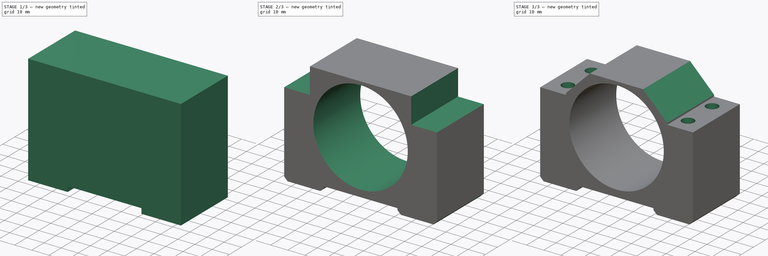
[diagram: build sequence overview — one tinted view per stage of 3, left to right]
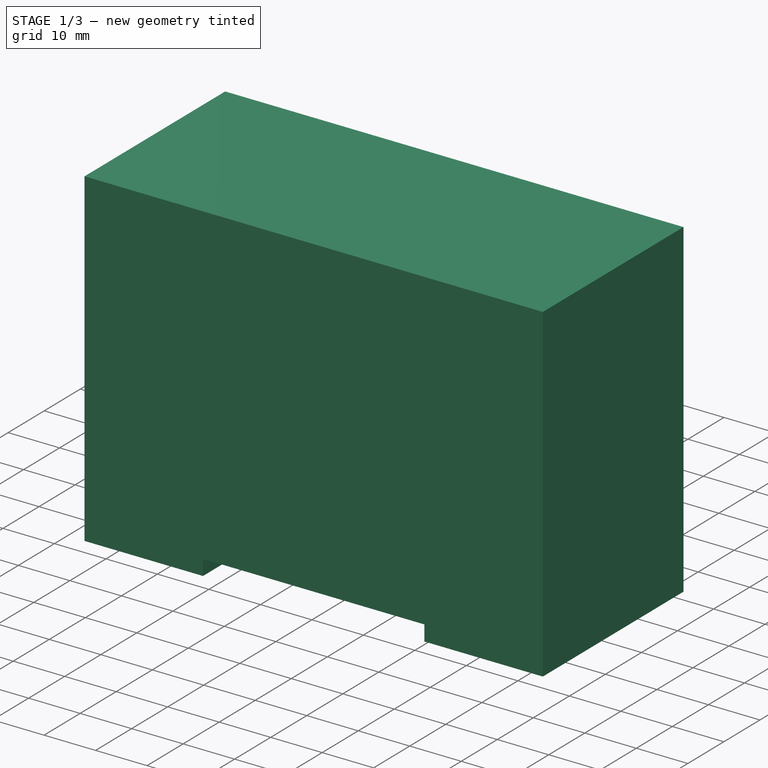
[diagram: stage 1 of 3 — iso view after this stage's code; geometry added in this stage tinted green]
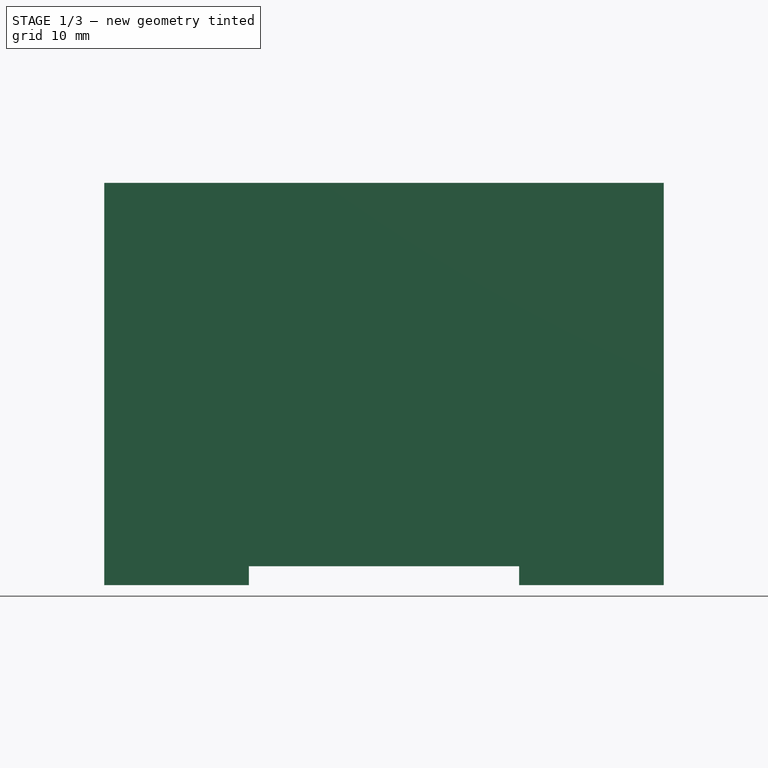
[diagram: stage 1 of 3 — front view after this stage's code; geometry added in this stage tinted green]
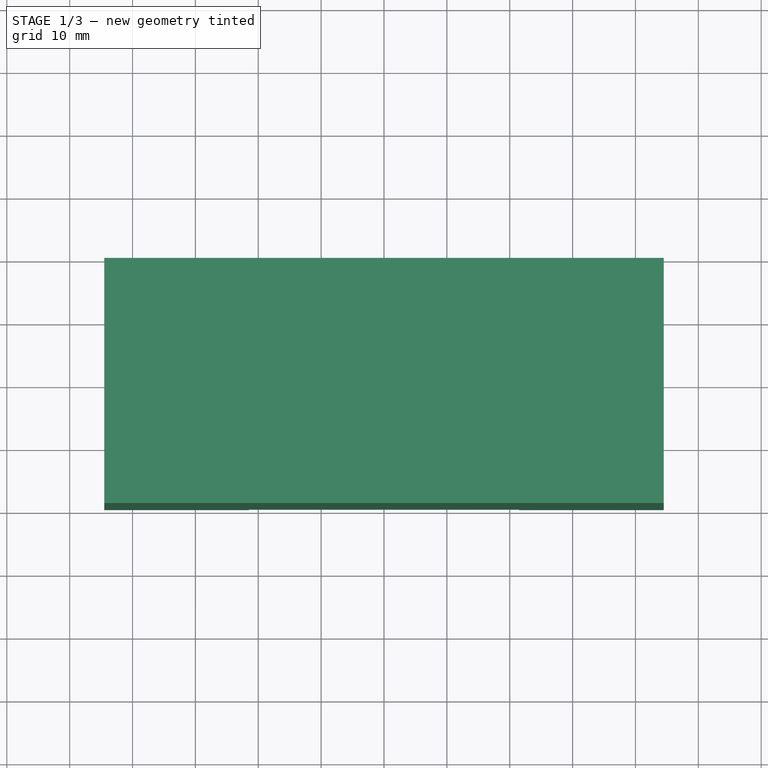
[diagram: stage 1 of 3 — top view after this stage's code; geometry added in this stage tinted green]
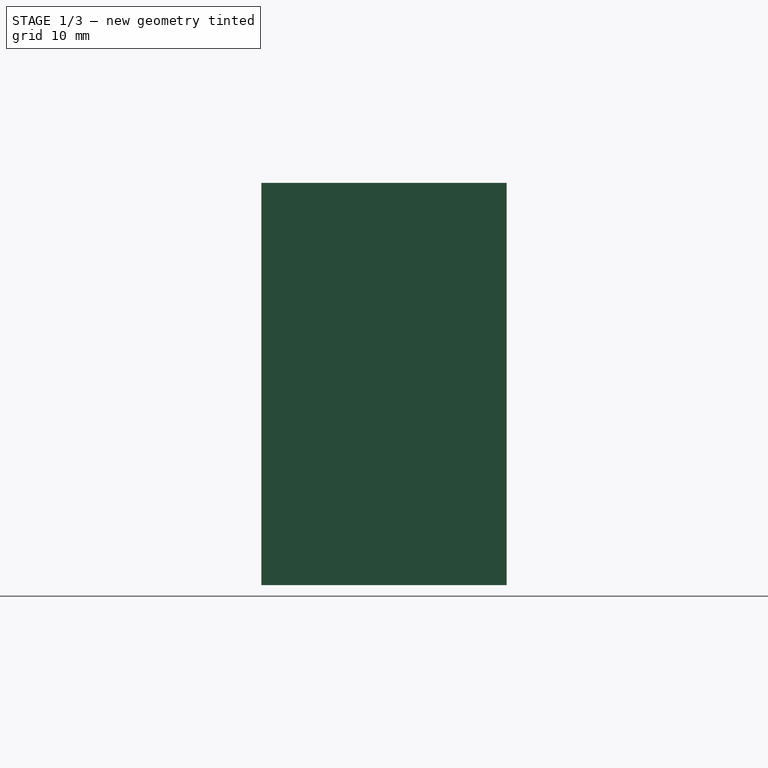
[diagram: stage 1 of 3 — right view after this stage's code; geometry added in this stage tinted green]
FCSTD DOCUMENT  (FreeCAD 0.17R13541 (Git))
Label: SpindleClamp55
License: All rights reserved
LicenseURL: http://en.wikipedia.org/wiki/All_rights_reserved
objects: Sketcher::SketchObject×5, PartDesign::Pocket×4, PartDesign::Chamfer×2, PartDesign::Pad×1, PartDesign::Body×1
note: 18 computed .brp shape members not serialized (recipe doc carries the construction recipe); baked Part::Feature solids carry a one-line shape summary decoded from their .brp

FEATURE [Sketcher::SketchObject] Sketch
  MapMode = 5
  Support = -> [XY_Plane]
  sketch-geometry (4):
    g0: LineSegment StartX=-44.5 StartY=-19.5 StartZ=0 EndX=44.5 EndY=-19.5 EndZ=0
    g1: LineSegment StartX=44.5 StartY=-19.5 StartZ=0 EndX=44.5 EndY=19.5 EndZ=0
    g2: LineSegment StartX=44.5 StartY=19.5 StartZ=0 EndX=-44.5 EndY=19.5 EndZ=0
    g3: LineSegment StartX=-44.5 StartY=19.5 StartZ=0 EndX=-44.5 EndY=-19.5 EndZ=0
  constraints (11):
    c: Coincident(g0,g1)
    c: Coincident(g1,g2)
    c: Coincident(g2,g3)
    c: Coincident(g3,g0)
    c: Horizontal(g0)
    c: Horizontal(g2)
    c: Vertical(g1)
    c: Vertical(g3)
    c: DistanceX(g0,g0) = 89
    c: DistanceY(g3,g3) = 39
    c: Symmetric(g2,g0,g-1)
FEATURE [PartDesign::Pad] Pad
  Length = 64
  Length2 = 100
  Profile = -> Sketch
  Type = 0
FEATURE [Sketcher::SketchObject] Sketch001
  MapMode = 5
  Support = -> [XY_Plane]
  sketch-geometry (4):
    g0: LineSegment StartX=-21.5 StartY=19.5 StartZ=0 EndX=21.5 EndY=19.5 EndZ=0
    g1: LineSegment StartX=21.5 StartY=19.5 StartZ=0 EndX=21.5 EndY=-19.5 EndZ=0
    g2: LineSegment StartX=21.5 StartY=-19.5 StartZ=0 EndX=-21.5 EndY=-19.5 EndZ=0
    g3: LineSegment StartX=-21.5 StartY=-19.5 StartZ=0 EndX=-21.5 EndY=19.5 EndZ=0
  constraints (11):
    c: Coincident(g0,g1)
    c: Coincident(g1,g2)
    c: Coincident(g2,g3)
    c: Coincident(g3,g0)
    c: Horizontal(g0)
    c: Horizontal(g2)
    c: Vertical(g1)
    c: Vertical(g3)
    c: DistanceX(g0,g0) = 43
    c: DistanceY(g1,g1) = 39
    c: Symmetric(g0,g1,g-1)
FEATURE [PartDesign::Pocket] Pocket
  BaseFeature = -> Pad
  Length = 3
  Length2 = 100
  Profile = -> Sketch001
  Reversed = true
  Type = 0
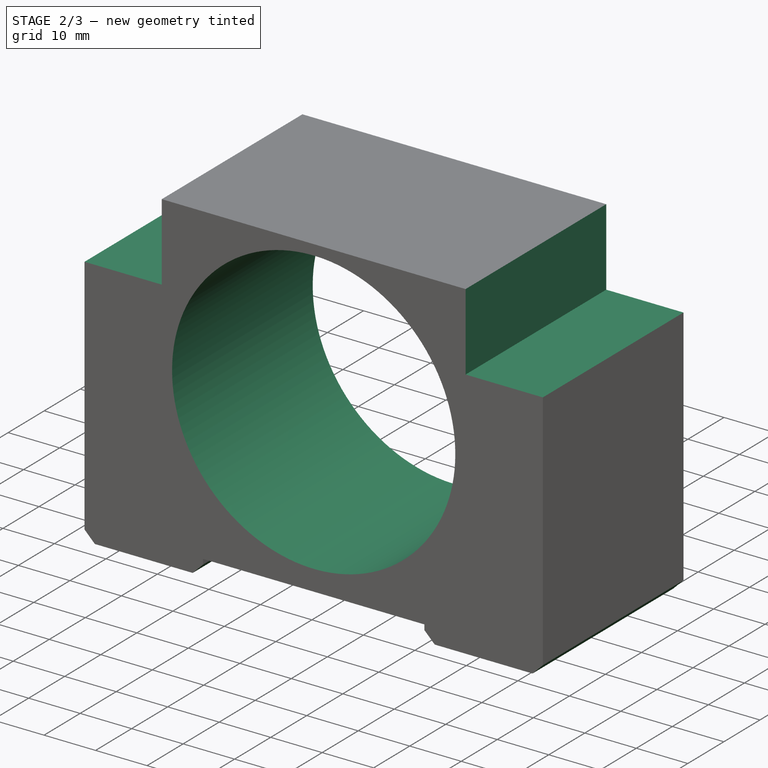
[diagram: stage 2 of 3 — iso view after this stage's code; geometry added in this stage tinted green]
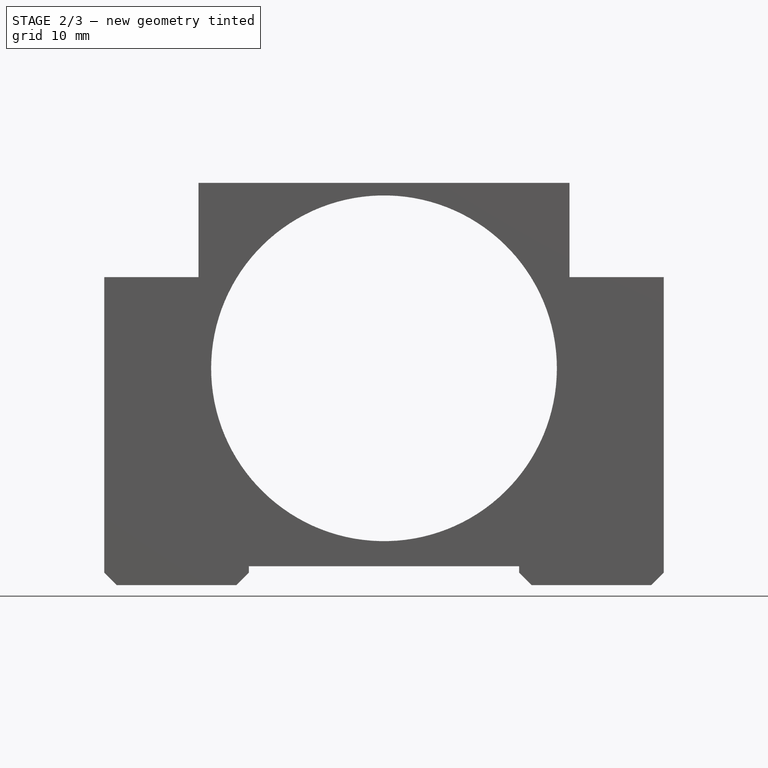
[diagram: stage 2 of 3 — front view after this stage's code; geometry added in this stage tinted green]
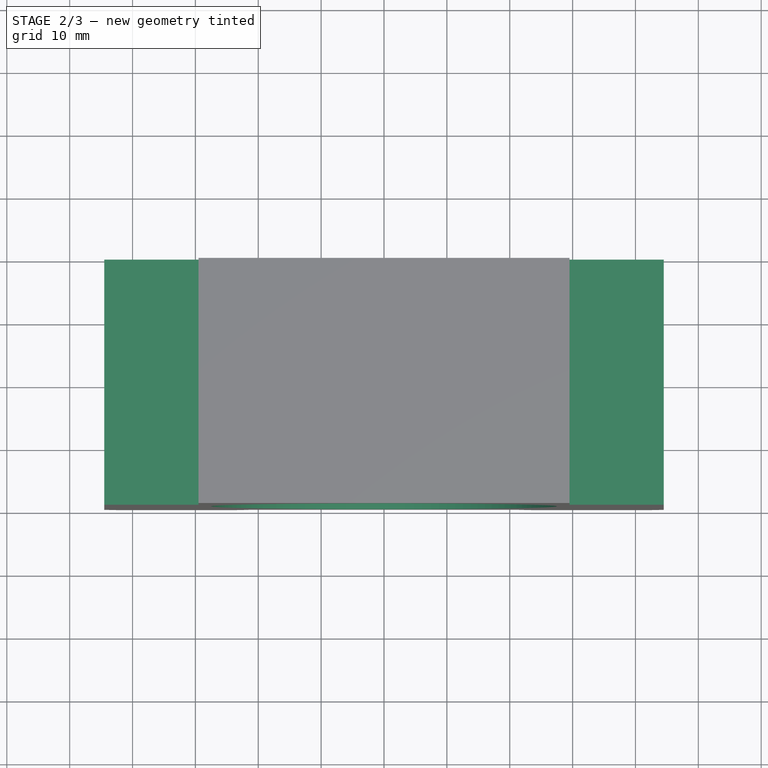
[diagram: stage 2 of 3 — top view after this stage's code; geometry added in this stage tinted green]
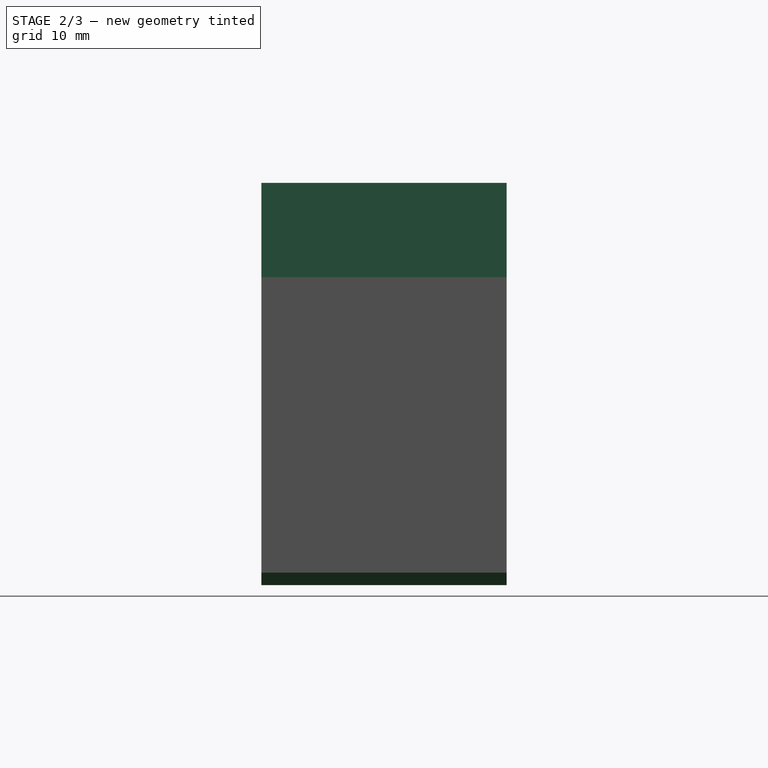
[diagram: stage 2 of 3 — right view after this stage's code; geometry added in this stage tinted green]
FEATURE [PartDesign::Chamfer] Chamfer
  Base = -> Pocket [Edge17,Edge11,Edge19,Edge9]
  BaseFeature = -> Pocket
  Size = 2
FEATURE [Sketcher::SketchObject] Sketch002
  MapMode = 5
  Placement = pos=(0,-19.5,0) rot=(1,0,0;1.5708rad)
  Support = -> [Chamfer]
  sketch-geometry (1):
    g0: Circle CenterX=0 CenterY=34.5 CenterZ=0 NormalX=0 NormalY=0 NormalZ=1 AngleXU=0 Radius=27.5
  constraints (3):
    c: PointOnObject(g0,g-2)
    c: DistanceY(g0) = 34.5
    c: Radius(g0) = 27.5
FEATURE [PartDesign::Pocket] Pocket001
  BaseFeature = -> Chamfer
  Length = 5
  Length2 = 100
  Profile = -> Sketch002
  Type = 1
FEATURE [Sketcher::SketchObject] Sketch003
  ExternalGeometry = -> [Pocket001]
  MapMode = 5
  Placement = pos=(0,0,64) rot=(0,0,1;0rad)
  Support = -> [Pocket001]
  sketch-geometry (11):
    g0: LineSegment StartX=-44.5 StartY=-19.5 StartZ=0 EndX=-29.5 EndY=-19.5 EndZ=0
    g1: LineSegment StartX=-29.5 StartY=-19.5 StartZ=0 EndX=-29.5 EndY=19.5 EndZ=0
    g2: LineSegment StartX=-29.5 StartY=19.5 StartZ=0 EndX=-44.5 EndY=19.5 EndZ=0
    g3: LineSegment StartX=-44.5 StartY=19.5 StartZ=0 EndX=-44.5 EndY=-19.5 EndZ=0
    g4: GeomPoint X=-34.6899 Y=19.5 Z=0
    g5: LineSegment StartX=44.5 StartY=19.5 StartZ=0 EndX=29.5 EndY=19.5 EndZ=0
    g6: LineSegment StartX=29.5 StartY=19.5 StartZ=0 EndX=29.5 EndY=-19.5 EndZ=0
    g7: LineSegment StartX=29.5 StartY=-19.5 StartZ=0 EndX=44.5 EndY=-19.5 EndZ=0
    g8: LineSegment StartX=44.5 StartY=-19.5 StartZ=0 EndX=44.5 EndY=19.5 EndZ=0
    g9: GeomPoint X=34.4199 Y=19.5 Z=0
    g10: GeomPoint X=25.6462 Y=-19.5 Z=0
  constraints (27):
    c: Coincident(g0,g1)
    c: Coincident(g1,g2)
    c: Coincident(g2,g3)
    c: Coincident(g3,g0)
    c: Horizontal(g0)
    c: Horizontal(g2)
    c: Vertical(g1)
    c: Vertical(g3)
    c: PointOnObject(g0,g-3)
    c: DistanceX(g2,g2) = 15
    c: DistanceY(g1,g1) = 39
    c: PointOnObject(g4,g-5)
    c: DistanceY(g1,g4) = 0
    c: Coincident(g5,g6)
    c: Coincident(g6,g7)
    c: Coincident(g7,g8)
    c: Coincident(g8,g5)
    c: Horizontal(g5)
    c: Horizontal(g7)
    c: Vertical(g6)
    c: Vertical(g8)
    c: PointOnObject(g5,g-4)
    c: PointOnObject(g6,g-6)
    c: DistanceX(g5,g5) = 15
    c: PointOnObject(g9,g-5)
    c: PointOnObject(g10,g-6)
    c: DistanceY(g5,g9) = 0
FEATURE [PartDesign::Pocket] Pocket002
  BaseFeature = -> Pocket001
  Length = 15
  Length2 = 100
  Profile = -> Sketch003
  Type = 0
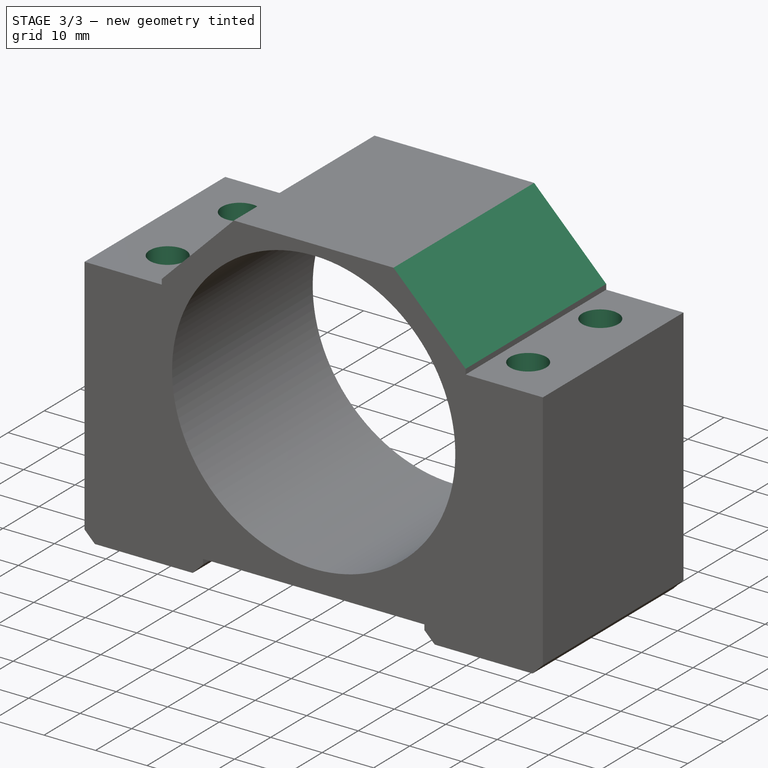
[diagram: stage 3 of 3 — iso view after this stage's code; geometry added in this stage tinted green]
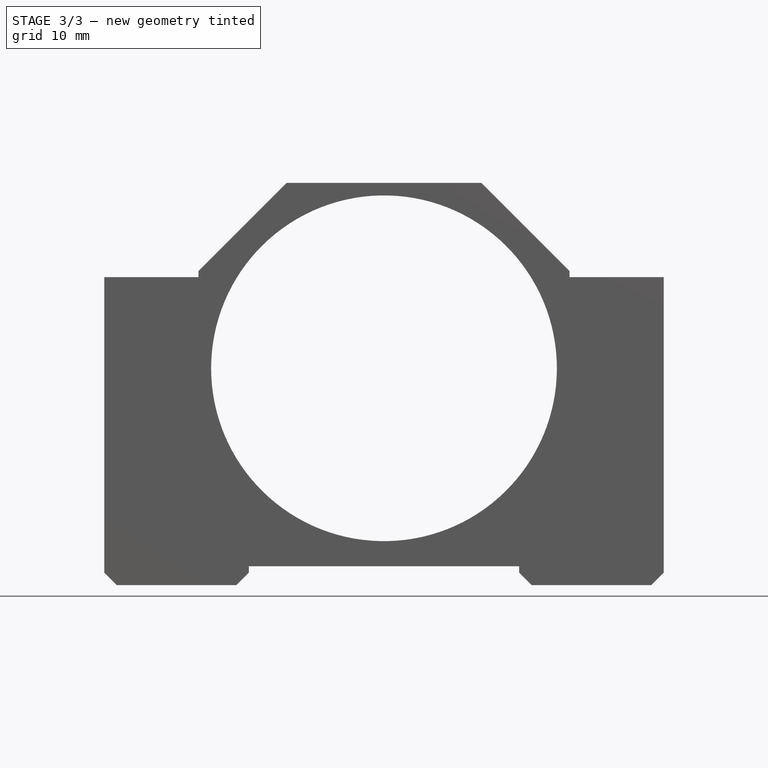
[diagram: stage 3 of 3 — front view after this stage's code; geometry added in this stage tinted green]
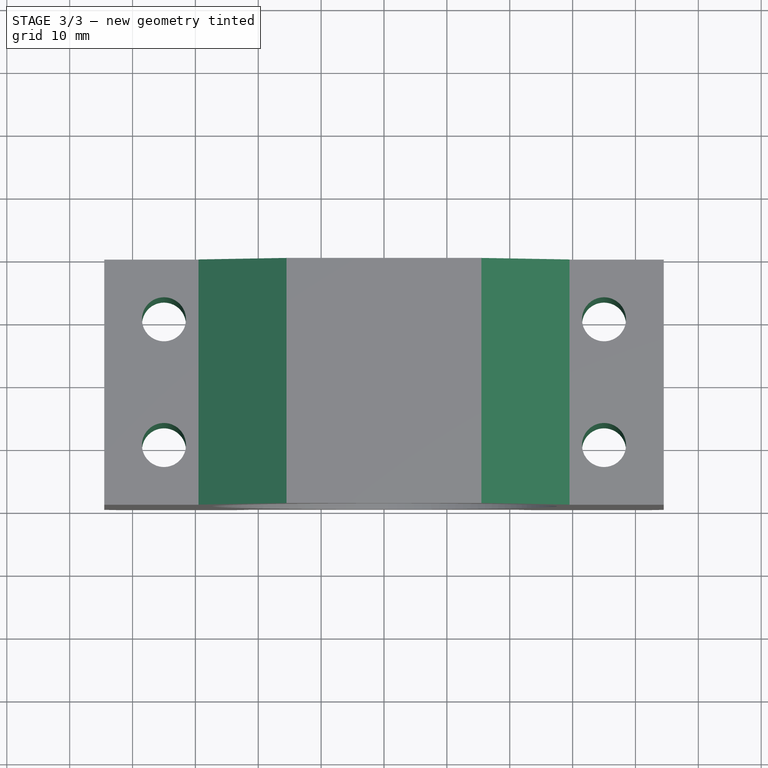
[diagram: stage 3 of 3 — top view after this stage's code; geometry added in this stage tinted green]
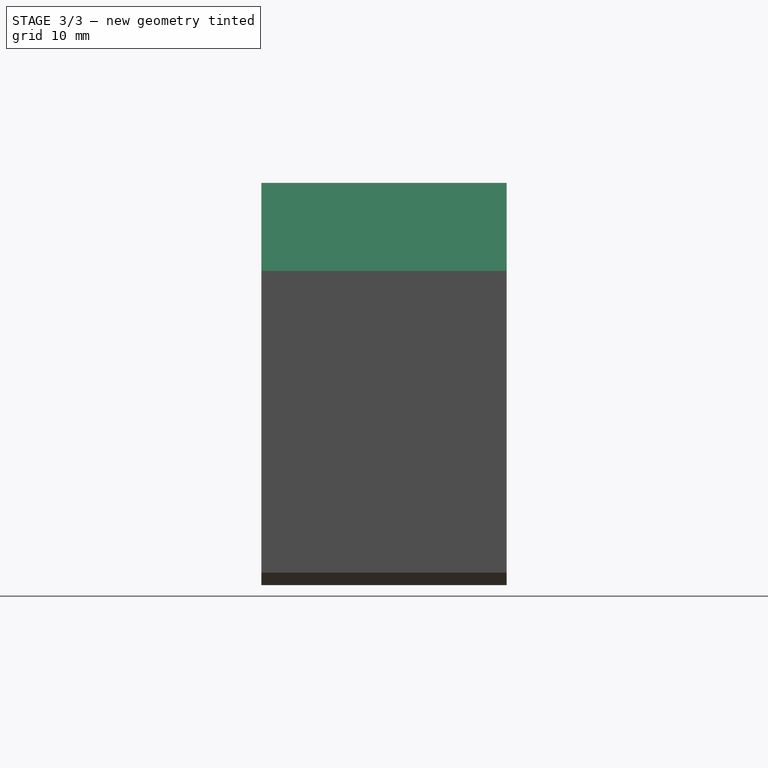
[diagram: stage 3 of 3 — right view after this stage's code; geometry added in this stage tinted green]
FEATURE [PartDesign::Chamfer] Chamfer001
  Base = -> Pocket002 [Edge40,Edge41]
  BaseFeature = -> Pocket002
  Size = 14
FEATURE [Sketcher::SketchObject] Sketch004
  ExternalGeometry = -> [Chamfer001,Pocket002]
  MapMode = 5
  Placement = pos=(0,0,0) rot=(1,0,0;3.14159rad)
  Support = -> [Chamfer001]
  sketch-geometry (10):
    g0: Circle CenterX=-35 CenterY=-10 CenterZ=0 NormalX=0 NormalY=0 NormalZ=1 AngleXU=0 Radius=3.5
    g1: GeomPoint X=44.5 Y=-4.24554 Z=0
    g2: GeomPoint X=33.7823 Y=-19.5 Z=0
    g3: GeomPoint X=34.5708 Y=19.5 Z=0
    g4: GeomPoint X=-44.5 Y=-10 Z=0
    g5: GeomPoint X=-34.2675 Y=-19.5 Z=0
    g6: GeomPoint X=-36.3903 Y=19.5 Z=0
    g7: Circle CenterX=-35 CenterY=10 CenterZ=0 NormalX=0 NormalY=0 NormalZ=1 AngleXU=0 Radius=3.5
    g8: Circle CenterX=35 CenterY=10 CenterZ=0 NormalX=0 NormalY=0 NormalZ=1 AngleXU=0 Radius=3.5
    g9: Circle CenterX=35 CenterY=-10 CenterZ=0 NormalX=0 NormalY=0 NormalZ=1 AngleXU=0 Radius=3.5
  constraints (12):
    c: Radius(g0) = 3.5
    c: PointOnObject(g1,g-12)
    c: PointOnObject(g2,g-7)
    c: PointOnObject(g3,g-8)
    c: PointOnObject(g4,g-11)
    c: PointOnObject(g5,g-4)
    c: PointOnObject(g6,g-3)
    c: DistanceX(g4,g0) = 9.5
    c: DistanceY(g5,g0) = 9.5
    c: Radius(g7) = 3.5
    c: Radius(g9) = 3.5
    c: Radius(g8) = 3.5
FEATURE [PartDesign::Pocket] Pocket003
  BaseFeature = -> Chamfer001
  Length = 5
  Length2 = 100
  Profile = -> Sketch004
  Type = 1
FEATURE [PartDesign::Body] Body
  Group = -> [Sketch,Pad,Sketch001,Pocket,Chamfer,Sketch002,Pocket001,Sketch003,Pocket002,Chamfer001,Sketch004,Pocket003]
  Origin = -> Origin
  Tip = -> Pocket003
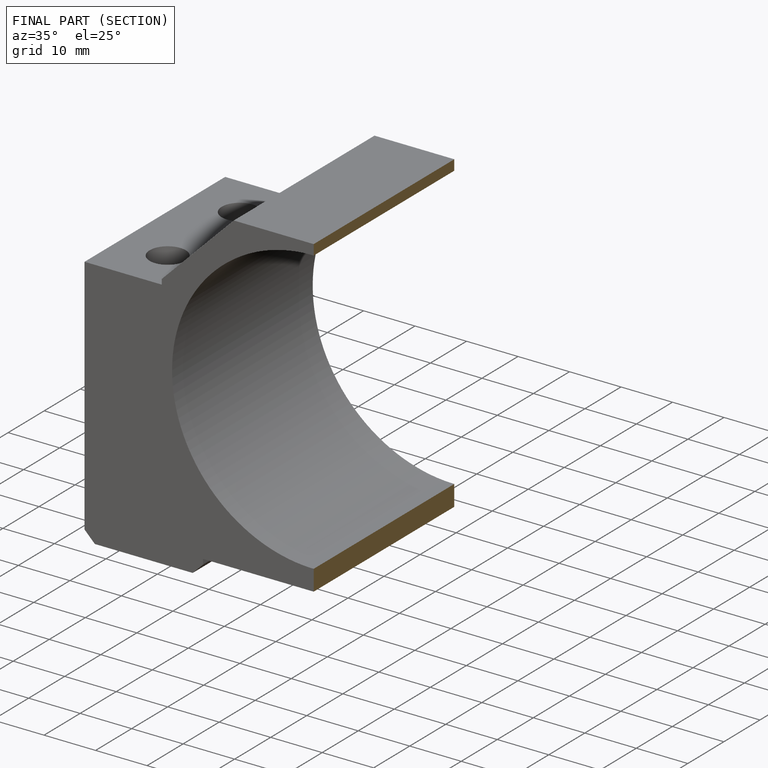
[diagram: finished part — half-section view (interior)]
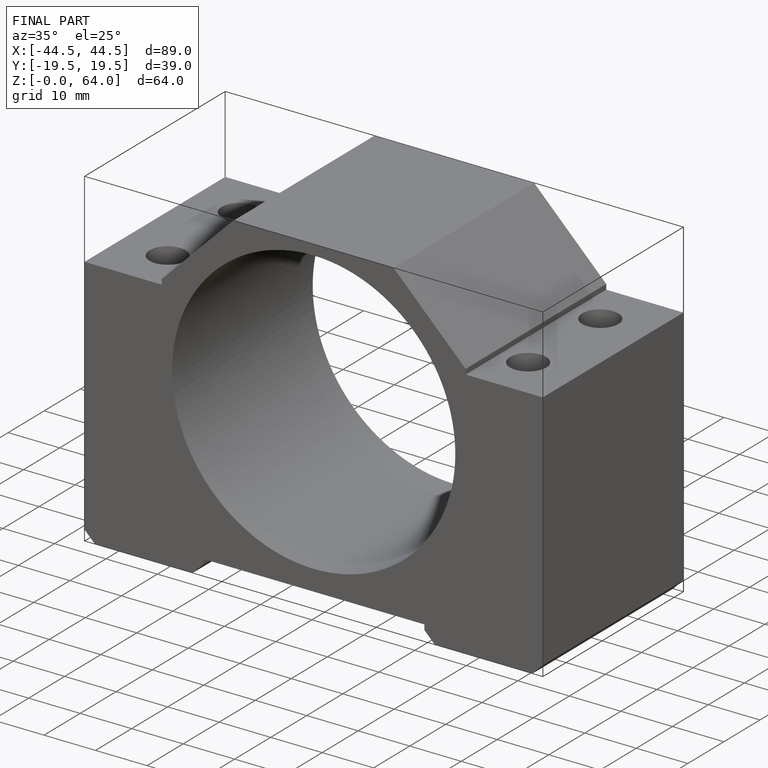
[diagram: finished part — iso view with bounding-box wireframe]
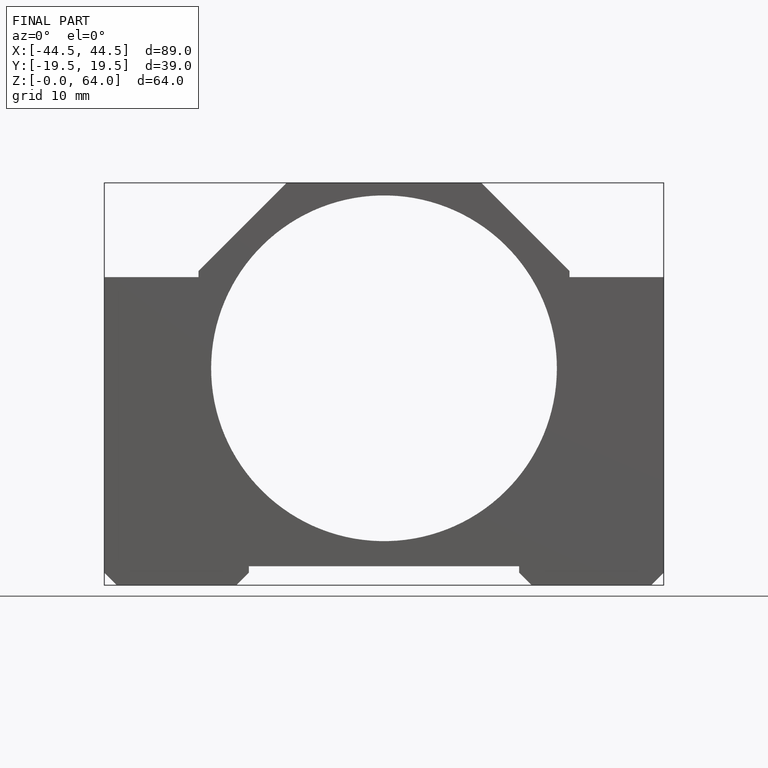
[diagram: finished part — front view with bounding-box wireframe]
